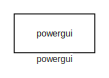
[diagram: root canvas - part 1/3, top left region]
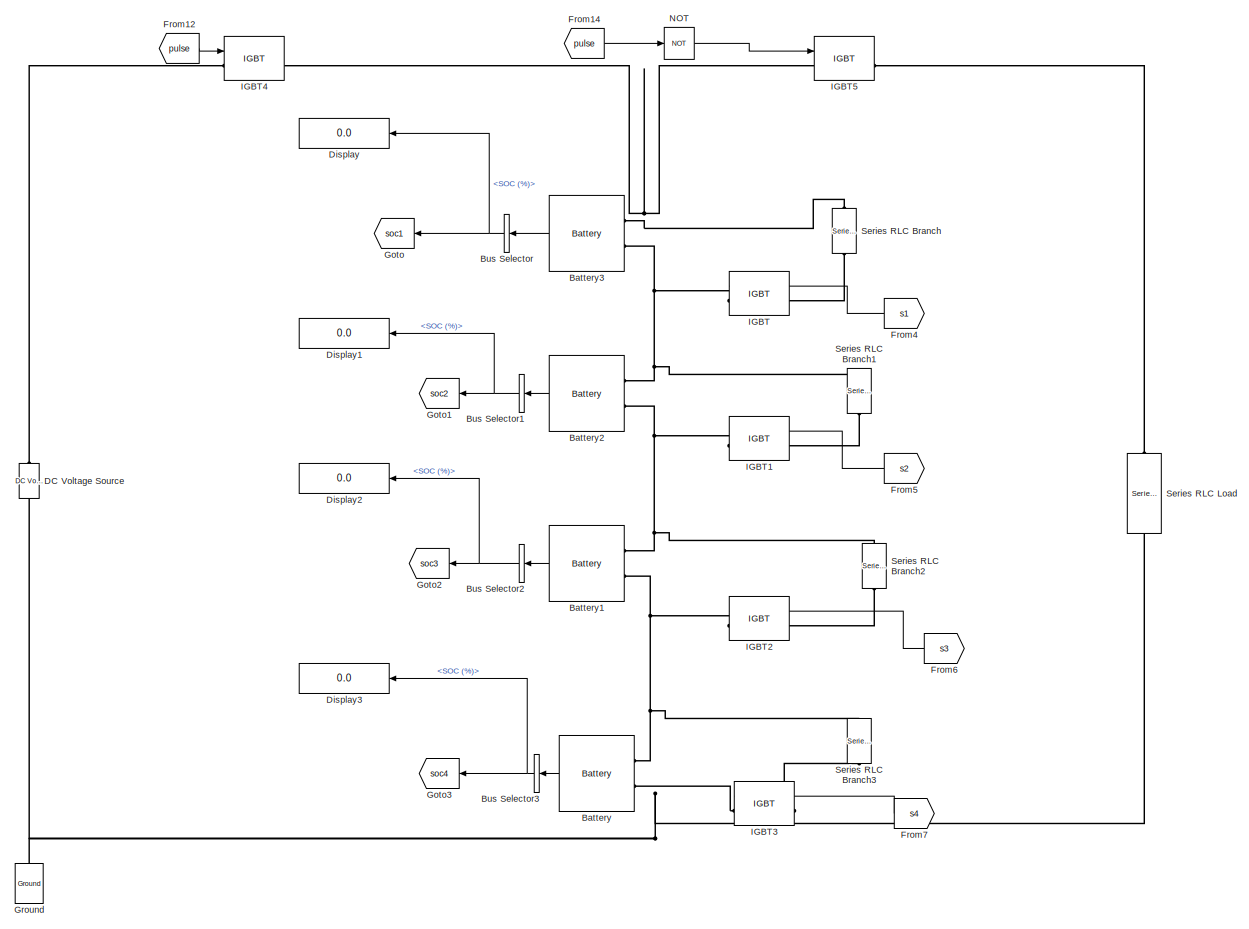
[diagram: root canvas - part 2/3, center side, full height]
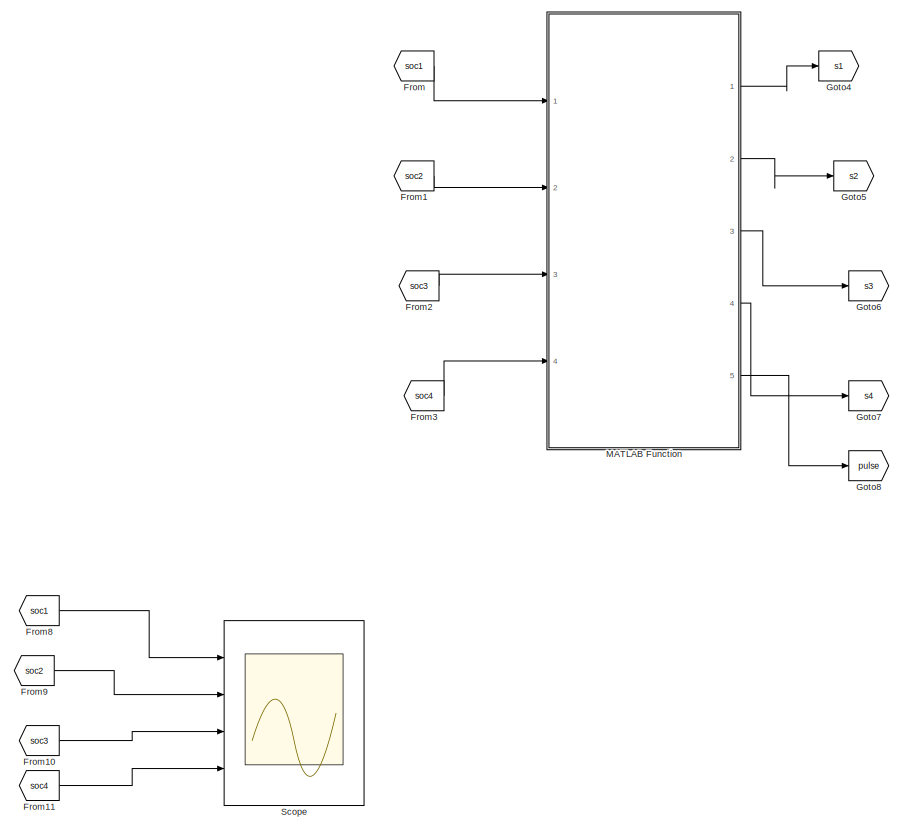
[diagram: root canvas - part 3/3, right side, full height]
MODEL slx_03adb63b4c22
KIND model
CONFIG AbsTol = auto
CONFIG EnableMultiTasking = off
CONFIG FixedStep = auto
CONFIG MaxStep = auto
CONFIG MinStep = auto
CONFIG RelTol = 1e-3
CONFIG SampleTimeConstraint = Unconstrained
CONFIG SolverName = VariableStepAuto
CONFIG StartTime = 0.0
CONFIG StopTime = 500
BLOCK [Reference] Battery  REF=spsBatteryLib/Battery
  Ports = [0, 1, 0, 0, 0, 2]
  SourceBlock = spsBatteryLib/Battery
  SourceProductBaseCode = PS
  SourceType = Battery
BLOCK [Reference] Battery1  REF=spsBatteryLib/Battery
  Ports = [0, 1, 0, 0, 0, 2]
  SourceBlock = spsBatteryLib/Battery
  SourceProductBaseCode = PS
  SourceType = Battery
BLOCK [Reference] Battery2  REF=spsBatteryLib/Battery
  Ports = [0, 1, 0, 0, 0, 2]
  SourceBlock = spsBatteryLib/Battery
  SourceProductBaseCode = PS
  SourceType = Battery
BLOCK [Reference] Battery3  REF=spsBatteryLib/Battery
  Ports = [0, 1, 0, 0, 0, 2]
  SourceBlock = spsBatteryLib/Battery
  SourceProductBaseCode = PS
  SourceType = Battery
BLOCK [BusSelector] Bus Selector
  NameLocation = top
  OutputSignals = SOC (%)
  Ports = [1, 1]
BLOCK [BusSelector] Bus Selector1
  NameLocation = top
  OutputSignals = SOC (%)
  Ports = [1, 1]
BLOCK [BusSelector] Bus Selector2
  NameLocation = top
  OutputSignals = SOC (%)
  Ports = [1, 1]
BLOCK [BusSelector] Bus Selector3
  NameLocation = top
  OutputSignals = SOC (%)
  Ports = [1, 1]
BLOCK [Reference] DC Voltage Source  REF=spsDCVoltageSourceLib/DC Voltage Source
  Ports = [0, 0, 0, 0, 0, 1, 1]
  SourceBlock = spsDCVoltageSourceLib/DC Voltage Source
  SourceProductBaseCode = PS
  SourceType = DC Voltage Source
BLOCK [Display] Display
  Decimation = 1
  NameLocation = top
  Ports = [1]
BLOCK [Display] Display1
  Decimation = 1
  NameLocation = top
  Ports = [1]
BLOCK [Display] Display2
  Decimation = 1
  NameLocation = top
  Ports = [1]
BLOCK [Display] Display3
  Decimation = 1
  NameLocation = top
  Ports = [1]
BLOCK [From] From
  GotoTag = soc1
  NameLocation = top
BLOCK [From] From1
  GotoTag = soc2
  NameLocation = top
BLOCK [From] From10
  GotoTag = soc3
BLOCK [From] From11
  GotoTag = soc4
BLOCK [From] From12
  GotoTag = pulse
BLOCK [From] From14
  Commented = on
  GotoTag = pulse
BLOCK [From] From2
  GotoTag = soc3
  NameLocation = top
BLOCK [From] From3
  GotoTag = soc4
  NameLocation = top
BLOCK [From] From4
  GotoTag = s1
  NameLocation = top
BLOCK [From] From5
  GotoTag = s2
  NameLocation = top
BLOCK [From] From6
  GotoTag = s3
  NameLocation = top
BLOCK [From] From7
  GotoTag = s4
  NameLocation = top
BLOCK [From] From8
  GotoTag = soc1
BLOCK [From] From9
  GotoTag = soc2
BLOCK [Goto] Goto
  GotoTag = soc1
  NameLocation = top
BLOCK [Goto] Goto1
  GotoTag = soc2
  NameLocation = top
BLOCK [Goto] Goto2
  GotoTag = soc3
  NameLocation = top
BLOCK [Goto] Goto3
  GotoTag = soc4
  NameLocation = top
BLOCK [Goto] Goto4
  GotoTag = s1
BLOCK [Goto] Goto5
  GotoTag = s2
BLOCK [Goto] Goto6
  GotoTag = s3
BLOCK [Goto] Goto7
  GotoTag = s4
BLOCK [Goto] Goto8
  GotoTag = pulse
BLOCK [Reference] Ground  REF=spsGroundLib/Ground
  NameLocation = right
  Ports = [0, 0, 0, 0, 0, 1]
  SourceBlock = spsGroundLib/Ground
  SourceProductBaseCode = PS
  SourceType = Ground
BLOCK [Reference] IGBT  REF=spsIGBTLib/IGBT
  NameLocation = top
  Ports = [1, 1, 0, 0, 0, 1, 1]
  SourceBlock = spsIGBTLib/IGBT
  SourceProductBaseCode = PS
  SourceType = IGBT
BLOCK [Reference] IGBT1  REF=spsIGBTLib/IGBT
  NameLocation = top
  Ports = [1, 1, 0, 0, 0, 1, 1]
  SourceBlock = spsIGBTLib/IGBT
  SourceProductBaseCode = PS
  SourceType = IGBT
BLOCK [Reference] IGBT2  REF=spsIGBTLib/IGBT
  NameLocation = top
  Ports = [1, 1, 0, 0, 0, 1, 1]
  SourceBlock = spsIGBTLib/IGBT
  SourceProductBaseCode = PS
  SourceType = IGBT
BLOCK [Reference] IGBT3  REF=spsIGBTLib/IGBT
  NameLocation = top
  Ports = [1, 1, 0, 0, 0, 1, 1]
  SourceBlock = spsIGBTLib/IGBT
  SourceProductBaseCode = PS
  SourceType = IGBT
BLOCK [Reference] IGBT4  REF=spsIGBTLib/IGBT
  Ports = [1, 1, 0, 0, 0, 1, 1]
  SourceBlock = spsIGBTLib/IGBT
  SourceProductBaseCode = PS
  SourceType = IGBT
BLOCK [Reference] IGBT5  REF=spsIGBTLib/IGBT
  Commented = on
  Ports = [1, 1, 0, 0, 0, 1, 1]
  SourceBlock = spsIGBTLib/IGBT
  SourceProductBaseCode = PS
  SourceType = IGBT
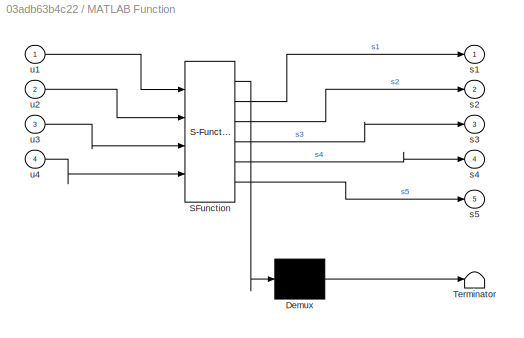
BLOCK [SubSystem] MATLAB Function
  ErrorFcn = Stateflow.Translate.translate
  PermitHierarchicalResolution = ExplicitOnly
  Ports = [4, 5]
  RequestExecContextInheritance = off
  SFBlockType = MATLAB Function
  TreatAsAtomicUnit = on
BLOCK [Demux] MATLAB Function/ Demux 
  Outputs = 1
  Ports = [1, 1]
BLOCK [S-Function] MATLAB Function/ SFunction 
  EnableBusSupport = on
  FunctionName = sf_sfun
  PortCounts = [4 6]
  Ports = [4, 6]
  SFcnIsStateOwnerBlock = off
  SFunctionDeploymentMode = off
  Tag = Stateflow S-Function 2
BLOCK [Terminator] MATLAB Function/ Terminator 
BLOCK [Outport] MATLAB Function/s1
BLOCK [Outport] MATLAB Function/s2
  Port = 2
BLOCK [Outport] MATLAB Function/s3
  Port = 3
BLOCK [Outport] MATLAB Function/s4
  Port = 4
BLOCK [Outport] MATLAB Function/s5
  Port = 5
BLOCK [Inport] MATLAB Function/u1
BLOCK [Inport] MATLAB Function/u2
  Port = 2
BLOCK [Inport] MATLAB Function/u3
  Port = 3
BLOCK [Inport] MATLAB Function/u4
  Port = 4
BLOCK [Logic] NOT
  AllPortsSameDT = off
  Commented = on
  IconShape = distinctive
  Operator = NOT
  OutDataTypeStr = boolean
  Ports = [1, 1]
BLOCK [Scope] Scope
  Floating = off
  NumInputPorts = 4
  Ports = [4]
  ScopeSpecificationString = Simulink.scopes.TimeScopeBlockCfg('CurrentConfiguration', extmgr.ConfigurationSet(extmgr.Configuration('Core','General UI',true,'FigureColor',[1 1 1]),extmgr.Configuration('Core','Source UI',true),extmgr.Configuration('Sources','WiredSimulink',true),extmgr.Configuration('Visuals','Time Domain',true,'SerializedDisplays',{struct('MinYLimReal','18.24971','MaxYLimReal','25.75003','YLabelReal','SOC','M...<+2000ch>
BLOCK [Reference] Series RLC Branch  REF=spsSeriesRLCBranchLib/Series RLC Branch
  NameLocation = left
  Ports = [0, 0, 0, 0, 0, 1, 1]
  SourceBlock = spsSeriesRLCBranchLib/Series RLC Branch
  SourceProductBaseCode = PS
  SourceType = Series RLC Branch
BLOCK [Reference] Series RLC Branch1  REF=spsSeriesRLCBranchLib/Series RLC Branch
  NameLocation = left
  Ports = [0, 0, 0, 0, 0, 1, 1]
  SourceBlock = spsSeriesRLCBranchLib/Series RLC Branch
  SourceProductBaseCode = PS
  SourceType = Series RLC Branch
BLOCK [Reference] Series RLC Branch2  REF=spsSeriesRLCBranchLib/Series RLC Branch
  NameLocation = left
  Ports = [0, 0, 0, 0, 0, 1, 1]
  SourceBlock = spsSeriesRLCBranchLib/Series RLC Branch
  SourceProductBaseCode = PS
  SourceType = Series RLC Branch
BLOCK [Reference] Series RLC Branch3  REF=spsSeriesRLCBranchLib/Series RLC Branch
  NameLocation = left
  Ports = [0, 0, 0, 0, 0, 1, 1]
  SourceBlock = spsSeriesRLCBranchLib/Series RLC Branch
  SourceProductBaseCode = PS
  SourceType = Series RLC Branch
BLOCK [Reference] Series RLC Load  REF=spsSeriesRLCLoadLib/Series RLC Load
  AttributesFormatString = \n
  Commented = on
  NameLocation = left
  Ports = [0, 0, 0, 0, 0, 1, 1]
  SourceBlock = spsSeriesRLCLoadLib/Series RLC Load
  SourceProductBaseCode = PS
  SourceType = Series RLC Load
BLOCK [Reference] powergui  REF=spspowerguiLib/powergui
  Ports = []
  Priority = 1
  SourceBlock = spspowerguiLib/powergui
  SourceProductBaseCode = PS
  SourceType = PSB option menu block
LINE Battery1:1 -> Bus Selector2:1
LINE Battery2:1 -> Bus Selector1:1
LINE Battery3:1 -> Bus Selector:1
LINE Battery:1 -> Bus Selector3:1
NET Bus Selector1:1 -> Display1:1, Goto1:1
NET Bus Selector2:1 -> Display2:1, Goto2:1
NET Bus Selector3:1 -> Display3:1, Goto3:1
NET Bus Selector:1 -> Display:1, Goto:1
LINE From10:1 -> Scope:3
LINE From11:1 -> Scope:4
LINE From12:1 -> IGBT4:1
LINE From14:1 -> NOT:1
LINE From1:1 -> MATLAB Function:2
LINE From2:1 -> MATLAB Function:3
LINE From3:1 -> MATLAB Function:4
LINE From4:1 -> IGBT:1
LINE From5:1 -> IGBT1:1
LINE From6:1 -> IGBT2:1
LINE From7:1 -> IGBT3:1
LINE From8:1 -> Scope:1
LINE From9:1 -> Scope:2
LINE From:1 -> MATLAB Function:1
LINE MATLAB Function:1 -> Goto4:1
LINE MATLAB Function:2 -> Goto5:1
LINE MATLAB Function:3 -> Goto6:1
LINE MATLAB Function:4 -> Goto7:1
LINE MATLAB Function:5 -> Goto8:1
LINE NOT:1 -> IGBT5:1
PNET net1: Battery1:LConn1 -- Battery2:LConn2 -- IGBT1:RConn1 -- Series RLC Branch2:LConn1
PNET net2: Battery1:LConn2 -- Battery:LConn1 -- IGBT2:RConn1 -- Series RLC Branch3:LConn1
PNET net3: Battery2:LConn1 -- Battery3:LConn2 -- IGBT:RConn1 -- Series RLC Branch1:LConn1
PNET net4: Battery3:LConn1 -- IGBT4:RConn1 -- IGBT5:LConn1 -- Series RLC Branch:LConn1
PNET net5: Battery:LConn2 -- DC Voltage Source:LConn1 -- Ground:LConn1 -- IGBT3:RConn1 -- Series RLC Load:RConn1
PLINE DC Voltage Source:RConn1 -- IGBT4:LConn1
PLINE IGBT1:LConn1 -- Series RLC Branch1:RConn1
PLINE IGBT2:LConn1 -- Series RLC Branch2:RConn1
PLINE IGBT3:LConn1 -- Series RLC Branch3:RConn1
PLINE IGBT5:RConn1 -- Series RLC Load:LConn1
PLINE IGBT:LConn1 -- Series RLC Branch:RConn1
note: NET lines group one-source signal fan-out (src -> all destinations, sorted); 1:1 wires keep LINE; PNET lines group multi-terminal physical nets as a canonical sorted terminal list (undirected conserving connections); 2-terminal nets keep the pairwise PLINE form
CHART MATLAB Function states=1 transitions=1
  STATE_LABEL 'eML_blk_kernel()'
  STATE_LABEL 'SCRIPT:\nfunction [s1,s2,s3,s4,s5] = fcn(u1,u2,u3,u4)\n\nu1=u1*1000;\nu2=u2*1000;\nu3=u3*1000;\nu4=u4*1000;\n\nu1=int32(u1);\nu2=int32(u2);\nu3=int32(u3);\nu4=int32(u4);\n\na=[u1,u2,u3,u4];\ndata = min(a);\n\nif (u1>data)\n    s1=1;\nelse\n    s1=0;\nend\n\nif (u2>data)\n    s2=1;\nelse\n    s2=0;\nend\n\nif (u3>data)\n    s3=1;\nelse\n    s3=0;\nend\n\nif (u4>data)\n    s4=1;\nelse\n    s4=0;\nend\nif(u1==u2 && u2==u3 && u3==u4)\n    i...<+60ch>'
CHART  states=0 transitions=0
